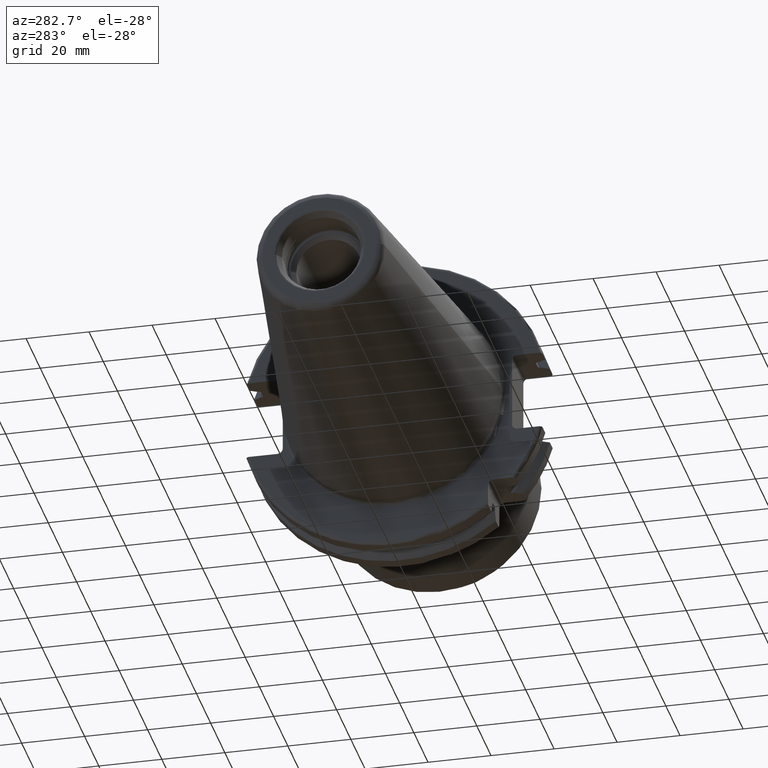
[diagram: clean part render]
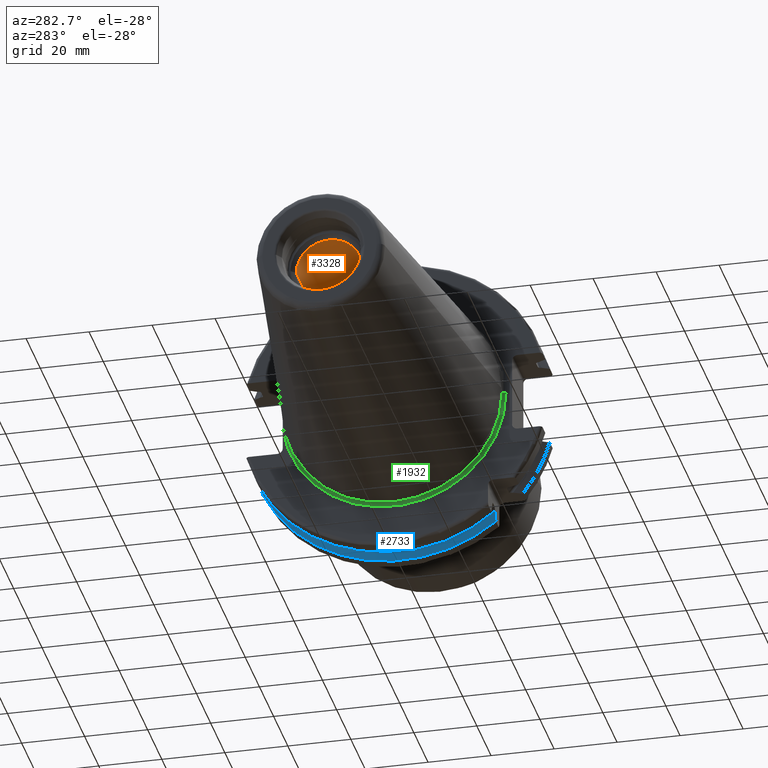
[diagram: same view with three faces highlighted in distinct colors, each labeled with its STEP entity id]
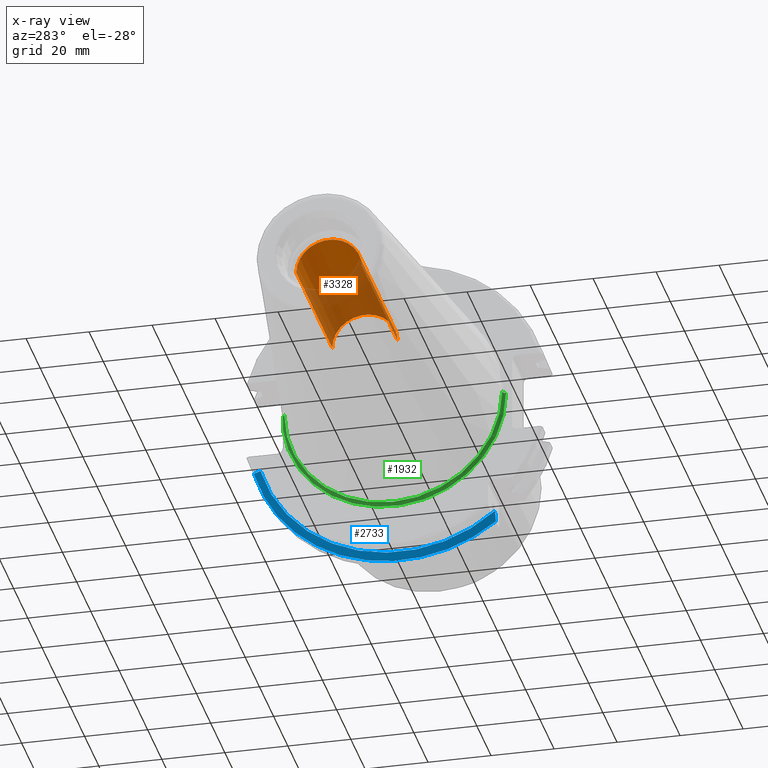
[diagram: x-ray of the same camera — body ghosted, the three highlighted faces saturated]
A machine part, auxiliary view with three faces highlighted in distinct colors.
The next image is the same camera in x-ray (body ghosted, the three faces saturated) — at least one of them is partly hidden behind the body in this view.
Their STEP definitions:

[orange] entity #3328 — the highlighted cylindrical surface (edge-blend (fillet) strip) has radius 10.375 mm, axis along (1, 0, 0).
#1466=CARTESIAN_POINT('',(-8.835E1,0.E0,0.E0));
#1467=DIRECTION('',(1.E0,0.E0,0.E0));
#1468=DIRECTION('',(0.E0,1.E0,0.E0));
#1469=AXIS2_PLACEMENT_3D('',#1466,#1467,#1468);
#1484=DIRECTION('',(-1.E0,0.E0,0.E0));
#1485=VECTOR('',#1484,5.075E1);
#1486=CARTESIAN_POINT('',(-3.76E1,1.0375E1,0.E0));
#1487=LINE('',#1486,#1485);
#1493=DIRECTION('',(-1.E0,0.E0,0.E0));
#1494=VECTOR('',#1493,5.075E1);
#1495=CARTESIAN_POINT('',(-3.76E1,-1.0375E1,0.E0));
#1496=LINE('',#1495,#1494);
#1497=CARTESIAN_POINT('',(-3.76E1,0.E0,0.E0));
#1498=DIRECTION('',(1.E0,0.E0,0.E0));
#1499=DIRECTION('',(0.E0,1.E0,0.E0));
#1500=AXIS2_PLACEMENT_3D('',#1497,#1498,#1499);
#1529=CARTESIAN_POINT('',(-3.76E1,1.0375E1,0.E0));
#1531=VERTEX_POINT('',#1529);
#1532=CARTESIAN_POINT('',(-8.835E1,1.0375E1,0.E0));
#1533=VERTEX_POINT('',#1532);
#1552=CARTESIAN_POINT('',(-3.76E1,-1.0375E1,0.E0));
#1553=VERTEX_POINT('',#1552);
#1554=CARTESIAN_POINT('',(-8.835E1,-1.0375E1,0.E0));
#1555=VERTEX_POINT('',#1554);
#3316=CARTESIAN_POINT('',(-1.051116964461E2,0.E0,0.E0));
#3317=DIRECTION('',(1.E0,0.E0,0.E0));
#3318=DIRECTION('',(0.E0,-1.E0,0.E0));
#3319=AXIS2_PLACEMENT_3D('',#3316,#3317,#3318);
#3320=CYLINDRICAL_SURFACE('',#3319,1.0375E1);
#3321=ORIENTED_EDGE('',*,*,#3306,.T.);
#3322=ORIENTED_EDGE('',*,*,#3283,.T.);
#3323=ORIENTED_EDGE('',*,*,#3310,.F.);
#3325=ORIENTED_EDGE('',*,*,#3324,.F.);
#3326=EDGE_LOOP('',(#3321,#3322,#3323,#3325));
#3327=FACE_OUTER_BOUND('',#3326,.F.);
#3328=ADVANCED_FACE('',(#3327),#3320,.F.);
#1470=CIRCLE('',#1469,1.0375E1);
#1501=CIRCLE('',#1500,1.0375E1);
#3283=EDGE_CURVE('',#1533,#1555,#1470,.T.);
#3306=EDGE_CURVE('',#1531,#1533,#1487,.T.);
#3310=EDGE_CURVE('',#1553,#1555,#1496,.T.);
#3324=EDGE_CURVE('',#1531,#1553,#1501,.T.);

[blue] entity #2733 — the highlighted conical surface has half-angle 60 deg.
#825=CARTESIAN_POINT('',(1.441537838583E1,0.E0,0.E0));
#826=DIRECTION('',(1.E0,0.E0,0.E0));
#827=DIRECTION('',(0.E0,-6.124647345473E-1,-7.904979120376E-1));
#828=AXIS2_PLACEMENT_3D('',#825,#826,#827);
#898=CARTESIAN_POINT('',(1.30875E1,4.460981716077E1,-1.29E1));
#899=CARTESIAN_POINT('',(1.323171622645E1,4.486984125009E1,-1.29E1));
#900=CARTESIAN_POINT('',(1.352236645045E1,4.539353719098E1,-1.29E1));
#901=CARTESIAN_POINT('',(1.396495664446E1,4.618996220278E1,-1.29E1));
#902=CARTESIAN_POINT('',(1.426449561388E1,4.672829507383E1,-1.29E1));
#903=CARTESIAN_POINT('',(1.441537838583E1,4.699929686974E1,-1.29E1));
#905=CARTESIAN_POINT('',(1.30875E1,0.E0,0.E0));
#906=DIRECTION('',(-1.E0,0.E0,0.E0));
#907=DIRECTION('',(0.E0,9.606411165078E-1,-2.777924499957E-1));
#908=AXIS2_PLACEMENT_3D('',#905,#906,#907);
#910=CARTESIAN_POINT('',(1.30875E1,-2.985E1,-3.557278857662E1));
#911=CARTESIAN_POINT('',(1.322720354061E1,-2.985E1,-3.588866659244E1));
#912=CARTESIAN_POINT('',(1.351179500938E1,-2.985E1,-3.652866450573E1));
#913=CARTESIAN_POINT('',(1.395393296765E1,-2.985E1,-3.751242476101E1));
#914=CARTESIAN_POINT('',(1.425975326859E1,-2.985E1,-3.818590359837E1));
#915=CARTESIAN_POINT('',(1.441537838583E1,-2.985E1,-3.852689198793E1));
#1608=CARTESIAN_POINT('',(1.30875E1,4.460981716077E1,-1.29E1));
#1610=VERTEX_POINT('',#1608);
#1628=VERTEX_POINT('',#903);
#1669=CARTESIAN_POINT('',(1.30875E1,-2.985E1,-3.557278857662E1));
#1670=VERTEX_POINT('',#1669);
#1778=VERTEX_POINT('',#915);
#2722=CARTESIAN_POINT('',(1.375143919291E1,0.E0,0.E0));
#2723=DIRECTION('',(1.E0,0.E0,0.E0));
#2724=DIRECTION('',(0.E0,-1.E0,0.E0));
#2725=AXIS2_PLACEMENT_3D('',#2722,#2723,#2724);
#2726=CONICAL_SURFACE('',#2725,4.758752358474E1,6.E1);
#2727=ORIENTED_EDGE('',*,*,#2130,.F.);
#2728=ORIENTED_EDGE('',*,*,#2438,.T.);
#2729=ORIENTED_EDGE('',*,*,#2563,.T.);
#2730=ORIENTED_EDGE('',*,*,#2665,.T.);
#2731=EDGE_LOOP('',(#2727,#2728,#2729,#2730));
#2732=FACE_OUTER_BOUND('',#2731,.F.);
#2733=ADVANCED_FACE('',(#2732),#2726,.T.);
#829=CIRCLE('',#828,4.87375E1);
#904=B_SPLINE_CURVE_WITH_KNOTS('',3,(#898,#899,#900,#901,#902,#903),
.UNSPECIFIED.,.F.,.F.,(4,1,1,4),(0.E0,3.333333333333E-1,6.666666666667E-1,1.E0),
.UNSPECIFIED.);
#909=CIRCLE('',#908,4.643754716948E1);
#916=B_SPLINE_CURVE_WITH_KNOTS('',3,(#910,#911,#912,#913,#914,#915),
.UNSPECIFIED.,.F.,.F.,(4,1,1,4),(0.E0,3.333333333333E-1,6.666666666667E-1,1.E0),
.UNSPECIFIED.);
#2130=EDGE_CURVE('',#1610,#1628,#904,.T.);
#2438=EDGE_CURVE('',#1610,#1670,#909,.T.);
#2563=EDGE_CURVE('',#1670,#1778,#916,.T.);
#2665=EDGE_CURVE('',#1778,#1628,#829,.T.);

[green] entity #1932 — the highlighted toroidal blend (fillet) surface has major radius 35.575 mm and minor (blend) radius 1 mm.
#91=CARTESIAN_POINT('',(2.2E0,0.E0,0.E0));
#92=DIRECTION('',(-1.E0,0.E0,0.E0));
#93=DIRECTION('',(0.E0,1.E0,0.E0));
#94=AXIS2_PLACEMENT_3D('',#91,#92,#93);
#96=CARTESIAN_POINT('',(3.161444226151E0,3.53E1,-1.048836461230E-13));
#97=CARTESIAN_POINT('',(3.161444226151E0,3.53E1,-2.287557745851E-1));
#98=CARTESIAN_POINT('',(3.162734010751E0,3.53E1,-6.792530123044E-1));
#99=CARTESIAN_POINT('',(3.167877030309E0,3.53E1,-1.331895850106E0));
#100=CARTESIAN_POINT('',(3.175250793624E0,3.53E1,-1.967616454588E0));
#101=CARTESIAN_POINT('',(3.183670148061E0,3.53E1,-2.589717830169E0));
#102=CARTESIAN_POINT('',(3.191796133338E0,3.53E1,-3.202378106077E0));
#103=CARTESIAN_POINT('',(3.198127290791E0,3.53E1,-3.809054455619E0));
#104=CARTESIAN_POINT('',(3.2E0,3.53E1,-4.213157466434E0));
#105=CARTESIAN_POINT('',(3.2E0,3.53E1,-4.414818795828E0));
#107=CARTESIAN_POINT('',(2.2E0,3.5575E1,0.E0));
#108=DIRECTION('',(0.E0,0.E0,-1.E0));
#109=DIRECTION('',(9.614442261515E-1,-2.75E-1,0.E0));
#110=AXIS2_PLACEMENT_3D('',#107,#108,#109);
#112=CARTESIAN_POINT('',(2.2E0,-3.5575E1,0.E0));
#113=DIRECTION('',(0.E0,0.E0,1.E0));
#114=DIRECTION('',(1.E0,0.E0,0.E0));
#115=AXIS2_PLACEMENT_3D('',#112,#113,#114);
#117=CARTESIAN_POINT('',(3.2E0,0.E0,0.E0));
#118=DIRECTION('',(-1.E0,0.E0,0.E0));
#119=DIRECTION('',(0.E0,9.922698524245E-1,-1.240989120402E-1));
#120=AXIS2_PLACEMENT_3D('',#117,#118,#119);
#945=CARTESIAN_POINT('',(3.161444226151E0,3.53E1,-1.048836461230E-13));
#1518=CARTESIAN_POINT('',(2.2E0,3.4575E1,0.E0));
#1520=VERTEX_POINT('',#1518);
#1522=CARTESIAN_POINT('',(3.2E0,-3.5575E1,0.E0));
#1523=CARTESIAN_POINT('',(2.2E0,-3.4575E1,0.E0));
#1524=VERTEX_POINT('',#1522);
#1525=VERTEX_POINT('',#1523);
#1649=VERTEX_POINT('',#945);
#1650=VERTEX_POINT('',#105);
#1916=CARTESIAN_POINT('',(2.2E0,0.E0,0.E0));
#1917=DIRECTION('',(1.E0,0.E0,0.E0));
#1918=DIRECTION('',(0.E0,-1.E0,0.E0));
#1919=AXIS2_PLACEMENT_3D('',#1916,#1917,#1918);
#1920=TOROIDAL_SURFACE('',#1919,3.5575E1,1.E0);
#1922=ORIENTED_EDGE('',*,*,#1921,.F.);
#1924=ORIENTED_EDGE('',*,*,#1923,.T.);
#1925=ORIENTED_EDGE('',*,*,#1911,.T.);
#1927=ORIENTED_EDGE('',*,*,#1926,.F.);
#1929=ORIENTED_EDGE('',*,*,#1928,.F.);
#1930=EDGE_LOOP('',(#1922,#1924,#1925,#1927,#1929));
#1931=FACE_OUTER_BOUND('',#1930,.F.);
#1932=ADVANCED_FACE('',(#1931),#1920,.F.);
#95=CIRCLE('',#94,3.4575E1);
#106=B_SPLINE_CURVE_WITH_KNOTS('',3,(#96,#97,#98,#99,#100,#101,#102,#103,#104,
#105),.UNSPECIFIED.,.F.,.F.,(4,1,1,1,1,1,1,4),(0.E0,1.428571428571E-1,
2.857142857143E-1,4.285714285714E-1,5.714285714286E-1,7.142857142857E-1,
8.571428571429E-1,1.E0),.UNSPECIFIED.);
#111=CIRCLE('',#110,1.E0);
#116=CIRCLE('',#115,1.E0);
#121=CIRCLE('',#120,3.5575E1);
#1911=EDGE_CURVE('',#1520,#1525,#95,.T.);
#1921=EDGE_CURVE('',#1649,#1650,#106,.T.);
#1923=EDGE_CURVE('',#1649,#1520,#111,.T.);
#1926=EDGE_CURVE('',#1524,#1525,#116,.T.);
#1928=EDGE_CURVE('',#1650,#1524,#121,.T.);